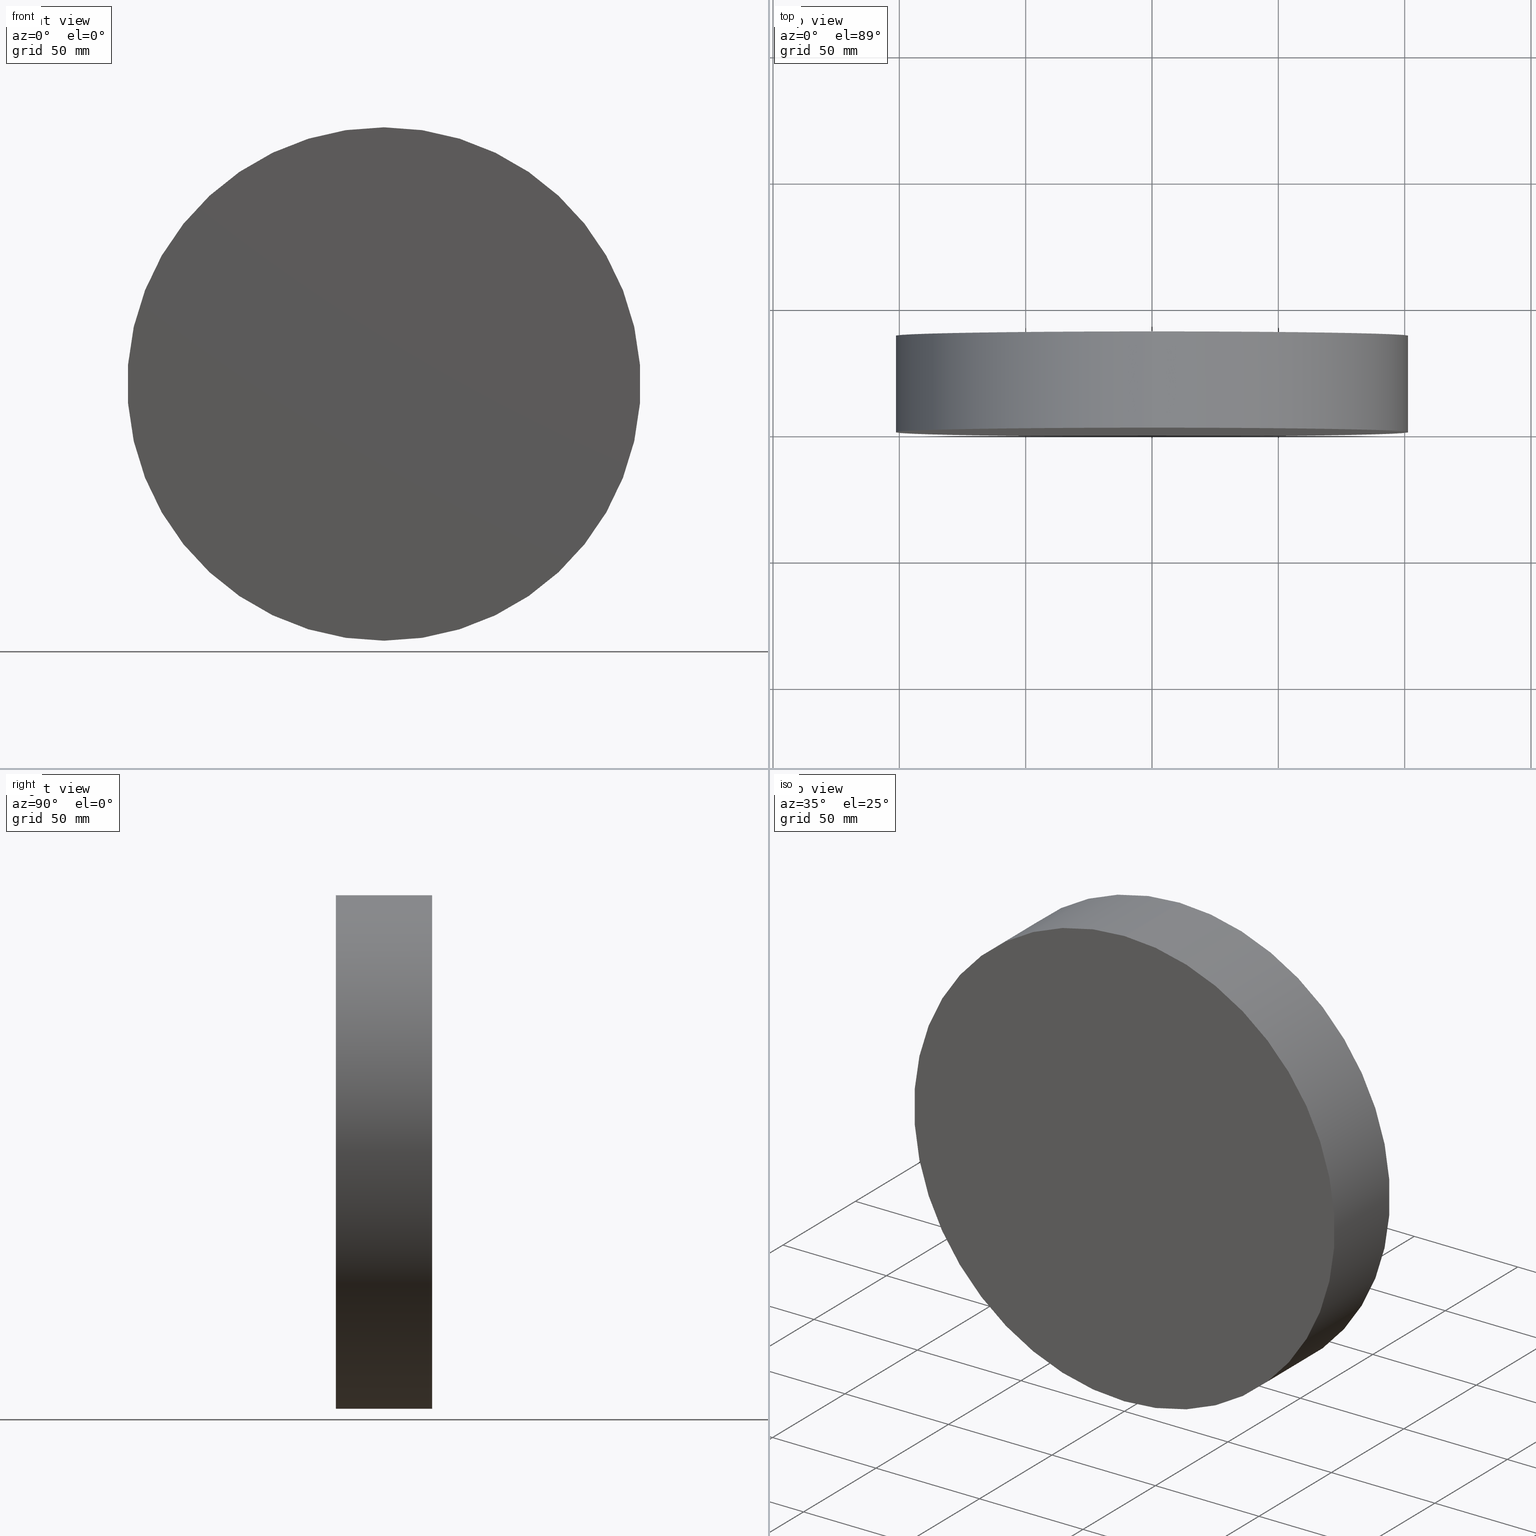
[diagram: canonical four-view strip — front | top / right | iso, engineering-drawing reading convention]
A machine part, canonical four-view strip (front | top / right | iso — engineering-drawing reading convention). The complete STEP part file that produces these views, byte-faithful:
ISO-10303-21;
HEADER;
FILE_DESCRIPTION (( 'STEP AP214' ),
    '1' );
FILE_NAME ('192505.STEP',
    '2019-07-19T05:27:37',
    ( 'user' ),
    ( '΢���й�' ),
    'SwSTEP 2.0',
    'SolidWorks 2016',
    '' );
FILE_SCHEMA (( 'AUTOMOTIVE_DESIGN' ));
ENDSEC;

DATA;
#1 = ADVANCED_FACE ( 'NONE', ( #117 ), #29, .F. ) ;
#2 = ORIENTED_EDGE ( 'NONE', *, *, #83, .T. ) ;
#3 = CIRCLE ( 'NONE', #84, 101.5999999999999900 ) ;
#4 = DIRECTION ( 'NONE',  ( 0.0000000000000000000, 0.0000000000000000000, 1.000000000000000000 ) ) ;
#5 = CARTESIAN_POINT ( 'NONE',  ( 0.0000000000000000000, 0.0000000000000000000, -101.5999999999999900 ) ) ;
#6 = SURFACE_SIDE_STYLE ('',( #14 ) ) ;
#7 = VERTEX_POINT ( 'NONE', #127 ) ;
#8 = ADVANCED_FACE ( 'NONE', ( #10 ), #24, .T. ) ;
#9 = ORIENTED_EDGE ( 'NONE', *, *, #17, .F. ) ;
#10 = FACE_OUTER_BOUND ( 'NONE', #75, .T. ) ;
#11 = ADVANCED_BREP_SHAPE_REPRESENTATION ( '192505', ( #102, #98 ), #41 ) ;
#12 = CARTESIAN_POINT ( 'NONE',  ( 0.0000000000000000000, 38.10000000000000100, 0.0000000000000000000 ) ) ;
#13 =( NAMED_UNIT ( * ) PLANE_ANGLE_UNIT ( ) SI_UNIT ( $, .RADIAN. ) );
#14 = SURFACE_STYLE_FILL_AREA ( #66 ) ;
#15 = CIRCLE ( 'NONE', #46, 101.5999999999999900 ) ;
#16 =( NAMED_UNIT ( * ) SI_UNIT ( $, .STERADIAN. ) SOLID_ANGLE_UNIT ( ) );
#17 = EDGE_CURVE ( 'NONE', #70, #45, #15, .T. ) ;
#18 = ORIENTED_EDGE ( 'NONE', *, *, #83, .F. ) ;
#19 = APPLICATION_PROTOCOL_DEFINITION ( 'draft international standard', 'automotive_design', 1998, #95 ) ;
#20 = AXIS2_PLACEMENT_3D ( 'NONE', #114, #44, #111 ) ;
#21 = PRESENTATION_LAYER_ASSIGNMENT (  '', '', ( #30 ) ) ;
#22 = CLOSED_SHELL ( 'NONE', ( #92, #8, #49, #1 ) ) ;
#23 = EDGE_CURVE ( 'NONE', #7, #45, #109, .T. ) ;
#24 = CYLINDRICAL_SURFACE ( 'NONE', #91, 101.5999999999999900 ) ;
#25 = DIRECTION ( 'NONE',  ( 0.0000000000000000000, 0.0000000000000000000, 1.000000000000000000 ) ) ;
#26 = DIRECTION ( 'NONE',  ( -0.0000000000000000000, -1.000000000000000000, -0.0000000000000000000 ) ) ;
#27 =( LENGTH_UNIT ( ) NAMED_UNIT ( * ) SI_UNIT ( .MILLI., .METRE. ) );
#28 = DIRECTION ( 'NONE',  ( 0.0000000000000000000, 1.000000000000000000, 0.0000000000000000000 ) ) ;
#29 = PLANE ( 'NONE',  #104 ) ;
#30 = STYLED_ITEM ( 'NONE', ( #106 ), #102 ) ;
#31 = MECHANICAL_DESIGN_GEOMETRIC_PRESENTATION_REPRESENTATION (  '', ( #30 ), #37 ) ;
#32 = PRODUCT_CONTEXT ( 'NONE', #58, 'mechanical' ) ;
#33 = DIRECTION ( 'NONE',  ( 0.0000000000000000000, 0.0000000000000000000, -1.000000000000000000 ) ) ;
#34 = DIRECTION ( 'NONE',  ( 0.0000000000000000000, 1.000000000000000000, 0.0000000000000000000 ) ) ;
#35 = DIRECTION ( 'NONE',  ( 0.0000000000000000000, 1.000000000000000000, 0.0000000000000000000 ) ) ;
#36 = CARTESIAN_POINT ( 'NONE',  ( 0.0000000000000000000, 0.0000000000000000000, 0.0000000000000000000 ) ) ;
#37 =( GEOMETRIC_REPRESENTATION_CONTEXT ( 3 ) GLOBAL_UNCERTAINTY_ASSIGNED_CONTEXT ( ( #123 ) ) GLOBAL_UNIT_ASSIGNED_CONTEXT ( ( #59, #137, #97 ) ) REPRESENTATION_CONTEXT ( 'NONE', 'WORKASPACE' ) );
#38 = APPLICATION_PROTOCOL_DEFINITION ( 'draft international standard', 'automotive_design', 1998, #58 ) ;
#39 = PRESENTATION_STYLE_ASSIGNMENT (( #138 ) ) ;
#40 = DIRECTION ( 'NONE',  ( 0.0000000000000000000, 0.0000000000000000000, 1.000000000000000000 ) ) ;
#41 =( GEOMETRIC_REPRESENTATION_CONTEXT ( 3 ) GLOBAL_UNCERTAINTY_ASSIGNED_CONTEXT ( ( #86 ) ) GLOBAL_UNIT_ASSIGNED_CONTEXT ( ( #54, #56, #55 ) ) REPRESENTATION_CONTEXT ( 'NONE', 'WORKASPACE' ) );
#42 = VECTOR ( 'NONE', #26, 1000.000000000000000 ) ;
#43 = CARTESIAN_POINT ( 'NONE',  ( 0.0000000000000000000, 38.10000000000000100, -101.5999999999999900 ) ) ;
#44 = DIRECTION ( 'NONE',  ( 0.0000000000000000000, 1.000000000000000000, 0.0000000000000000000 ) ) ;
#45 = VERTEX_POINT ( 'NONE', #130 ) ;
#46 = AXIS2_PLACEMENT_3D ( 'NONE', #125, #35, #4 ) ;
#47 = SURFACE_STYLE_USAGE ( .BOTH. , #65 ) ;
#48 = FACE_OUTER_BOUND ( 'NONE', #90, .T. ) ;
#49 = ADVANCED_FACE ( 'NONE', ( #48 ), #67, .T. ) ;
#50 = CYLINDRICAL_SURFACE ( 'NONE', #96, 101.5999999999999900 ) ;
#51 = ORIENTED_EDGE ( 'NONE', *, *, #94, .F. ) ;
#52 = UNCERTAINTY_MEASURE_WITH_UNIT (LENGTH_MEASURE( 1.000000000000000100E-005 ), #27, 'distance_accuracy_value', 'NONE');
#53 = COLOUR_RGB ( '',1.000000000000000000, 1.000000000000000000, 1.000000000000000000 ) ;
#54 =( LENGTH_UNIT ( ) NAMED_UNIT ( * ) SI_UNIT ( .MILLI., .METRE. ) );
#55 =( NAMED_UNIT ( * ) SI_UNIT ( $, .STERADIAN. ) SOLID_ANGLE_UNIT ( ) );
#56 =( NAMED_UNIT ( * ) PLANE_ANGLE_UNIT ( ) SI_UNIT ( $, .RADIAN. ) );
#57 = STYLED_ITEM ( 'NONE', ( #39 ), #11 ) ;
#58 = APPLICATION_CONTEXT ( 'automotive_design' ) ;
#59 =( LENGTH_UNIT ( ) NAMED_UNIT ( * ) SI_UNIT ( .MILLI., .METRE. ) );
#60 = AXIS2_PLACEMENT_3D ( 'NONE', #100, #34, #25 ) ;
#61 = ORIENTED_EDGE ( 'NONE', *, *, #73, .T. ) ;
#62 = PRESENTATION_LAYER_ASSIGNMENT (  '', '', ( #57 ) ) ;
#63 = ORIENTED_EDGE ( 'NONE', *, *, #17, .T. ) ;
#64 = EDGE_CURVE ( 'NONE', #7, #131, #140, .T. ) ;
#65 = SURFACE_SIDE_STYLE ('',( #74 ) ) ;
#66 = FILL_AREA_STYLE ('',( #132 ) ) ;
#67 = PLANE ( 'NONE',  #135 ) ;
#68 = DIRECTION ( 'NONE',  ( 0.0000000000000000000, 0.0000000000000000000, 1.000000000000000000 ) ) ;
#69 = CARTESIAN_POINT ( 'NONE',  ( 0.0000000000000000000, 38.10000000000000100, -101.5999999999999900 ) ) ;
#70 = VERTEX_POINT ( 'NONE', #5 ) ;
#71 = MECHANICAL_DESIGN_GEOMETRIC_PRESENTATION_REPRESENTATION (  '', ( #57 ), #79 ) ;
#72 = COLOUR_RGB ( '',1.000000000000000000, 1.000000000000000000, 1.000000000000000000 ) ;
#73 = EDGE_CURVE ( 'NONE', #131, #70, #134, .T. ) ;
#74 = SURFACE_STYLE_FILL_AREA ( #110 ) ;
#75 = EDGE_LOOP ( 'NONE', ( #99, #51, #61, #63 ) ) ;
#76 = CARTESIAN_POINT ( 'NONE',  ( 0.0000000000000000000, 0.0000000000000000000, 0.0000000000000000000 ) ) ;
#77 = CARTESIAN_POINT ( 'NONE',  ( 1.244241147933710400E-014, 38.10000000000000100, 101.5999999999999900 ) ) ;
#78 = FILL_AREA_STYLE_COLOUR ( '', #53 ) ;
#79 =( GEOMETRIC_REPRESENTATION_CONTEXT ( 3 ) GLOBAL_UNCERTAINTY_ASSIGNED_CONTEXT ( ( #52 ) ) GLOBAL_UNIT_ASSIGNED_CONTEXT ( ( #27, #13, #16 ) ) REPRESENTATION_CONTEXT ( 'NONE', 'WORKASPACE' ) );
#80 = EDGE_LOOP ( 'NONE', ( #9, #18 ) ) ;
#81 = DIRECTION ( 'NONE',  ( 0.0000000000000000000, 1.000000000000000000, 0.0000000000000000000 ) ) ;
#82 = CIRCLE ( 'NONE', #20, 101.5999999999999900 ) ;
#83 = EDGE_CURVE ( 'NONE', #45, #70, #82, .T. ) ;
#84 = AXIS2_PLACEMENT_3D ( 'NONE', #88, #128, #68 ) ;
#85 = ORIENTED_EDGE ( 'NONE', *, *, #23, .T. ) ;
#86 = UNCERTAINTY_MEASURE_WITH_UNIT (LENGTH_MEASURE( 1.000000000000000100E-005 ), #54, 'distance_accuracy_value', 'NONE');
#87 = CARTESIAN_POINT ( 'NONE',  ( 0.0000000000000000000, 38.10000000000000100, 0.0000000000000000000 ) ) ;
#88 = CARTESIAN_POINT ( 'NONE',  ( 0.0000000000000000000, 38.10000000000000100, 0.0000000000000000000 ) ) ;
#89 = DIRECTION ( 'NONE',  ( -0.0000000000000000000, -1.000000000000000000, -0.0000000000000000000 ) ) ;
#90 = EDGE_LOOP ( 'NONE', ( #93, #120 ) ) ;
#91 = AXIS2_PLACEMENT_3D ( 'NONE', #116, #126, #33 ) ;
#92 = ADVANCED_FACE ( 'NONE', ( #105 ), #50, .T. ) ;
#93 = ORIENTED_EDGE ( 'NONE', *, *, #94, .T. ) ;
#94 = EDGE_CURVE ( 'NONE', #131, #7, #3, .T. ) ;
#95 = APPLICATION_CONTEXT ( 'automotive_design' ) ;
#96 = AXIS2_PLACEMENT_3D ( 'NONE', #87, #139, #113 ) ;
#97 =( NAMED_UNIT ( * ) SI_UNIT ( $, .STERADIAN. ) SOLID_ANGLE_UNIT ( ) );
#98 = AXIS2_PLACEMENT_3D ( 'NONE', #36, #40, #121 ) ;
#99 = ORIENTED_EDGE ( 'NONE', *, *, #23, .F. ) ;
#100 = CARTESIAN_POINT ( 'NONE',  ( 0.0000000000000000000, 38.10000000000000100, 0.0000000000000000000 ) ) ;
#101 = VECTOR ( 'NONE', #89, 1000.000000000000000 ) ;
#102 = MANIFOLD_SOLID_BREP ( '͹̨-����1', #22 ) ;
#103 = ORIENTED_EDGE ( 'NONE', *, *, #64, .F. ) ;
#104 = AXIS2_PLACEMENT_3D ( 'NONE', #76, #81, #136 ) ;
#105 = FACE_OUTER_BOUND ( 'NONE', #124, .T. ) ;
#106 = PRESENTATION_STYLE_ASSIGNMENT (( #47 ) ) ;
#107 = ORIENTED_EDGE ( 'NONE', *, *, #73, .F. ) ;
#108 = PRODUCT_DEFINITION ( 'δ֪', '', #118, #122 ) ;
#109 = LINE ( 'NONE', #77, #42 ) ;
#110 = FILL_AREA_STYLE ('',( #78 ) ) ;
#111 = DIRECTION ( 'NONE',  ( 0.0000000000000000000, 0.0000000000000000000, 1.000000000000000000 ) ) ;
#112 = DIRECTION ( 'NONE',  ( 0.0000000000000000000, -0.0000000000000000000, 1.000000000000000000 ) ) ;
#113 = DIRECTION ( 'NONE',  ( 0.0000000000000000000, 0.0000000000000000000, -1.000000000000000000 ) ) ;
#114 = CARTESIAN_POINT ( 'NONE',  ( 0.0000000000000000000, 0.0000000000000000000, 0.0000000000000000000 ) ) ;
#115 = PRODUCT ( '192505', '192505', '', ( #32 ) ) ;
#116 = CARTESIAN_POINT ( 'NONE',  ( 0.0000000000000000000, 38.10000000000000100, 0.0000000000000000000 ) ) ;
#117 = FACE_OUTER_BOUND ( 'NONE', #80, .T. ) ;
#118 = PRODUCT_DEFINITION_FORMATION_WITH_SPECIFIED_SOURCE ( '�κ�', '', #115, .NOT_KNOWN. ) ;
#119 = PRODUCT_DEFINITION_SHAPE ( 'NONE', 'NONE',  #108 ) ;
#120 = ORIENTED_EDGE ( 'NONE', *, *, #64, .T. ) ;
#121 = DIRECTION ( 'NONE',  ( 1.000000000000000000, 0.0000000000000000000, 0.0000000000000000000 ) ) ;
#122 = PRODUCT_DEFINITION_CONTEXT ( 'detailed design', #95, 'design' ) ;
#123 = UNCERTAINTY_MEASURE_WITH_UNIT (LENGTH_MEASURE( 1.000000000000000100E-005 ), #59, 'distance_accuracy_value', 'NONE');
#124 = EDGE_LOOP ( 'NONE', ( #103, #85, #2, #107 ) ) ;
#125 = CARTESIAN_POINT ( 'NONE',  ( 0.0000000000000000000, 0.0000000000000000000, 0.0000000000000000000 ) ) ;
#126 = DIRECTION ( 'NONE',  ( -0.0000000000000000000, -1.000000000000000000, -0.0000000000000000000 ) ) ;
#127 = CARTESIAN_POINT ( 'NONE',  ( 1.244241147933710400E-014, 38.10000000000000100, 101.5999999999999900 ) ) ;
#128 = DIRECTION ( 'NONE',  ( 0.0000000000000000000, 1.000000000000000000, 0.0000000000000000000 ) ) ;
#129 = PRODUCT_RELATED_PRODUCT_CATEGORY ( 'part', '', ( #115 ) ) ;
#130 = CARTESIAN_POINT ( 'NONE',  ( 1.244241147933710400E-014, 0.0000000000000000000, 101.5999999999999900 ) ) ;
#131 = VERTEX_POINT ( 'NONE', #43 ) ;
#132 = FILL_AREA_STYLE_COLOUR ( '', #72 ) ;
#133 = SHAPE_DEFINITION_REPRESENTATION ( #119, #11 ) ;
#134 = LINE ( 'NONE', #69, #101 ) ;
#135 = AXIS2_PLACEMENT_3D ( 'NONE', #12, #28, #112 ) ;
#136 = DIRECTION ( 'NONE',  ( 0.0000000000000000000, -0.0000000000000000000, 1.000000000000000000 ) ) ;
#137 =( NAMED_UNIT ( * ) PLANE_ANGLE_UNIT ( ) SI_UNIT ( $, .RADIAN. ) );
#138 = SURFACE_STYLE_USAGE ( .BOTH. , #6 ) ;
#139 = DIRECTION ( 'NONE',  ( -0.0000000000000000000, -1.000000000000000000, -0.0000000000000000000 ) ) ;
#140 = CIRCLE ( 'NONE', #60, 101.5999999999999900 ) ;
ENDSEC;
END-ISO-10303-21;
